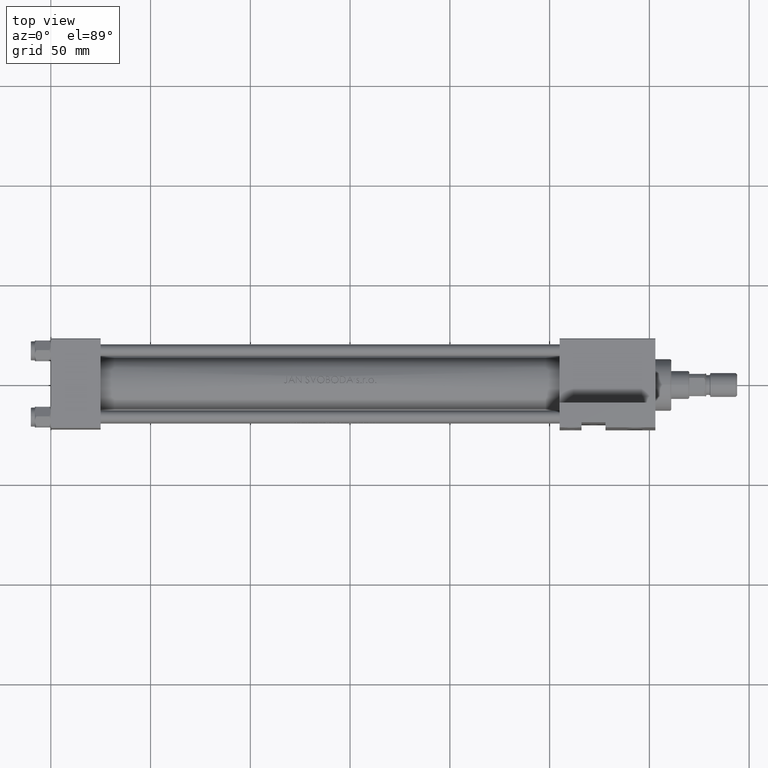
[diagram: clean part render]
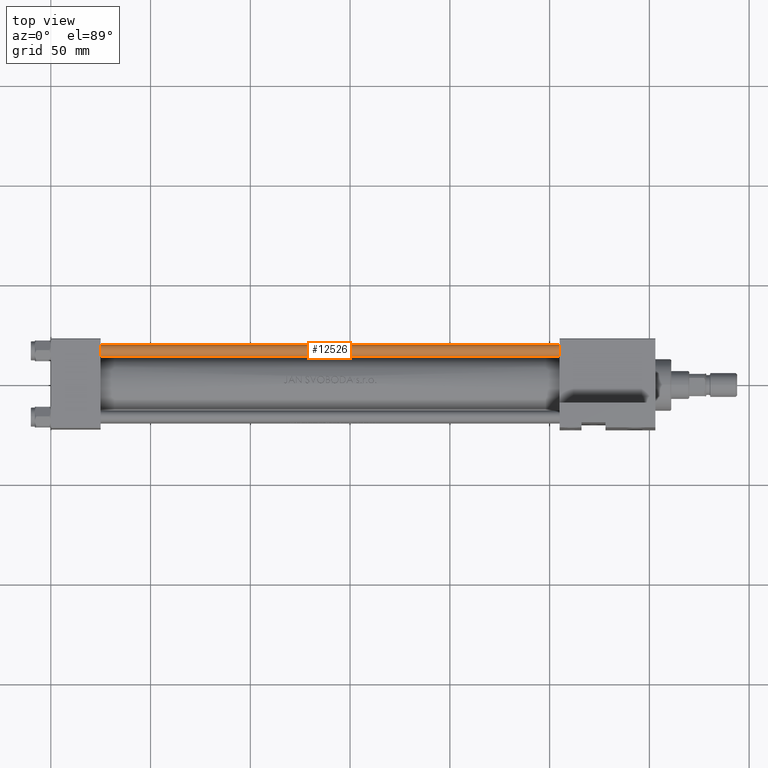
[diagram: same view with one face highlighted and labeled with its STEP entity id]
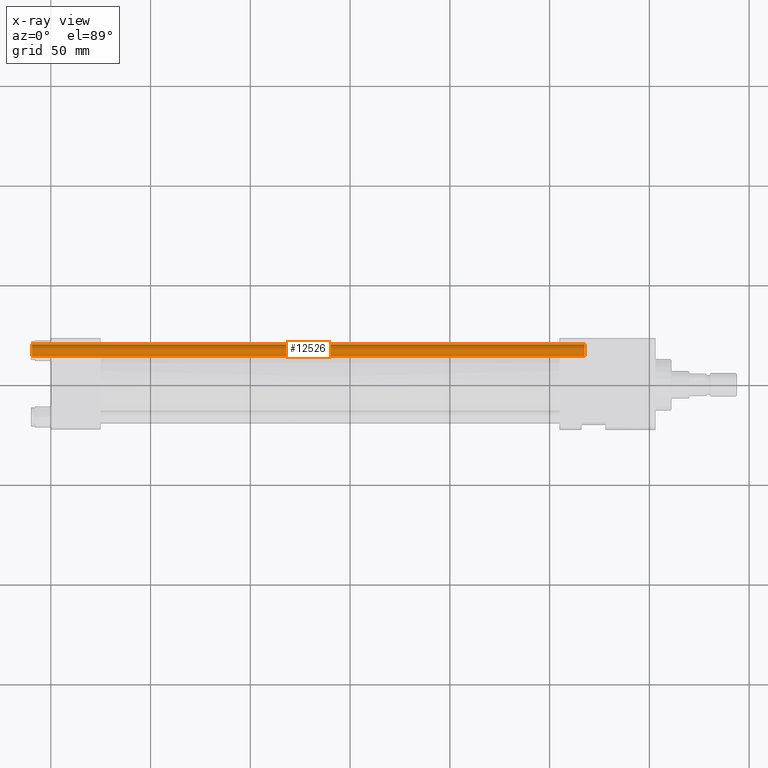
[diagram: x-ray of the same camera — body ghosted, the highlighted face saturated]
A machine part, top view. The second image highlights one B-rep face of the part: STEP entity #12526.
The next image is the same camera in x-ray: the body ghosted, the highlighted face saturated — about 0% of this face is hidden behind the body in this view.
In plain terms, the highlighted cylindrical surface (edge-blend (fillet) strip) has radius 3 mm, axis along (1, -0, 0).
Its self-contained STEP definition (entity closure, byte-faithful):
#815 = ORIENTED_EDGE ( 'NONE', *, *, #7300, .F. ) ;
#1724 = AXIS2_PLACEMENT_3D ( 'NONE', #16164, #12749, #39051 ) ;
#2053 = CARTESIAN_POINT ( 'NONE',  ( 0.000000000000000000, 0.000000000000000000, 278.0000000000000000 ) ) ;
#3023 = DIRECTION ( 'NONE',  ( -0.000000000000000000, -0.000000000000000000, -1.000000000000000000 ) ) ;
#6102 = VERTEX_POINT ( 'NONE', #21580 ) ;
#6798 = DIRECTION ( 'NONE',  ( 1.000000000000000000, 0.000000000000000000, 0.000000000000000000 ) ) ;
#6957 = EDGE_CURVE ( 'NONE', #18164, #13117, #37465, .T. ) ;
#7300 = EDGE_CURVE ( 'NONE', #6102, #43637, #31761, .T. ) ;
#8864 = FACE_OUTER_BOUND ( 'NONE', #26203, .T. ) ;
#9925 = AXIS2_PLACEMENT_3D ( 'NONE', #2053, #23731, #20083 ) ;
#12526 = ADVANCED_FACE ( 'NONE', ( #8864 ), #47110, .T. ) ;
#12715 = CARTESIAN_POINT ( 'NONE',  ( -3.000000000000000444, 0.000000000000000000, 277.5000000000000568 ) ) ;
#12749 = DIRECTION ( 'NONE',  ( 0.000000000000000000, 0.000000000000000000, -1.000000000000000000 ) ) ;
#12919 = VECTOR ( 'NONE', #3023, 1000.000000000000000 ) ;
#13117 = VERTEX_POINT ( 'NONE', #48142 ) ;
#13735 = VECTOR ( 'NONE', #15529, 1000.000000000000000 ) ;
#14451 = CARTESIAN_POINT ( 'NONE',  ( 3.000000000000000444, 3.673940397442060361E-16, 278.0000000000000000 ) ) ;
#15529 = DIRECTION ( 'NONE',  ( -0.000000000000000000, -0.000000000000000000, -1.000000000000000000 ) ) ;
#15713 = CIRCLE ( 'NONE', #1724, 3.000000000000000444 ) ;
#16164 = CARTESIAN_POINT ( 'NONE',  ( 0.000000000000000000, 0.000000000000000000, 277.5000000000000568 ) ) ;
#18164 = VERTEX_POINT ( 'NONE', #12715 ) ;
#19925 = ORIENTED_EDGE ( 'NONE', *, *, #31934, .T. ) ;
#20083 = DIRECTION ( 'NONE',  ( -1.000000000000000000, 0.000000000000000000, 0.000000000000000000 ) ) ;
#21580 = CARTESIAN_POINT ( 'NONE',  ( 3.000000000000000444, 3.673940397442060361E-16, 277.5000000000000568 ) ) ;
#22837 = CARTESIAN_POINT ( 'NONE',  ( -3.000000000000000444, 0.000000000000000000, 278.0000000000000000 ) ) ;
#23731 = DIRECTION ( 'NONE',  ( -0.000000000000000000, -0.000000000000000000, -1.000000000000000000 ) ) ;
#24632 = ORIENTED_EDGE ( 'NONE', *, *, #47080, .T. ) ;
#26203 = EDGE_LOOP ( 'NONE', ( #815, #24632, #36578, #19925 ) ) ;
#26922 = AXIS2_PLACEMENT_3D ( 'NONE', #40170, #46754, #6798 ) ;
#31761 = LINE ( 'NONE', #14451, #12919 ) ;
#31934 = EDGE_CURVE ( 'NONE', #13117, #43637, #45558, .T. ) ;
#34388 = CARTESIAN_POINT ( 'NONE',  ( 3.000000000000000444, 3.673940397442060361E-16, 0.5000000000000559552 ) ) ;
#36578 = ORIENTED_EDGE ( 'NONE', *, *, #6957, .T. ) ;
#37465 = LINE ( 'NONE', #22837, #13735 ) ;
#39051 = DIRECTION ( 'NONE',  ( 1.000000000000000000, 0.000000000000000000, 0.000000000000000000 ) ) ;
#40170 = CARTESIAN_POINT ( 'NONE',  ( 0.000000000000000000, 0.000000000000000000, 0.5000000000000559552 ) ) ;
#43637 = VERTEX_POINT ( 'NONE', #34388 ) ;
#45558 = CIRCLE ( 'NONE', #26922, 3.000000000000000444 ) ;
#46754 = DIRECTION ( 'NONE',  ( -0.000000000000000000, -0.000000000000000000, 1.000000000000000000 ) ) ;
#47080 = EDGE_CURVE ( 'NONE', #6102, #18164, #15713, .T. ) ;
#47110 = CYLINDRICAL_SURFACE ( 'NONE', #9925, 3.000000000000000444 ) ;
#48142 = CARTESIAN_POINT ( 'NONE',  ( -3.000000000000000444, 0.000000000000000000, 0.5000000000000559552 ) ) ;